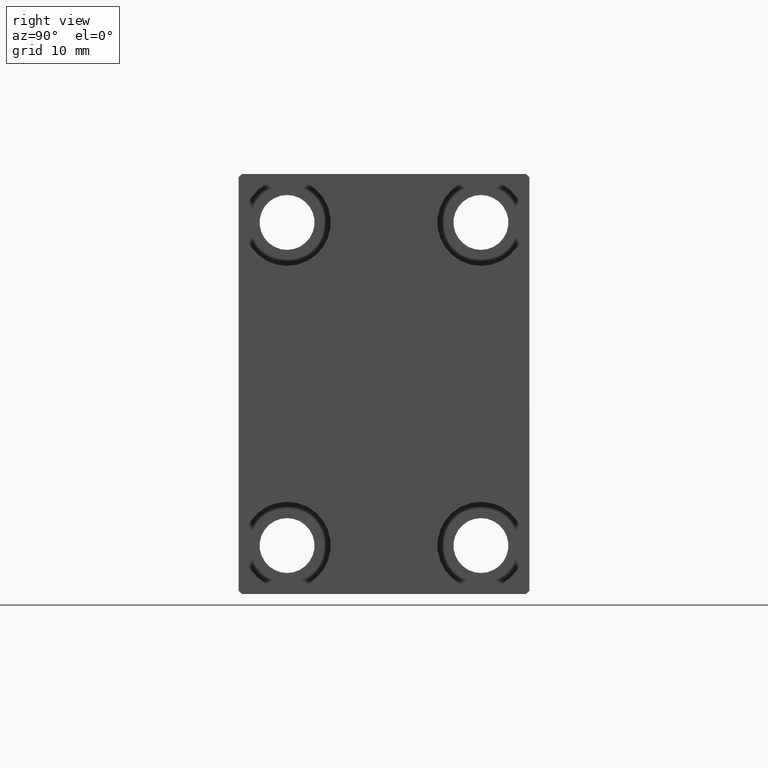
[diagram: clean part render]
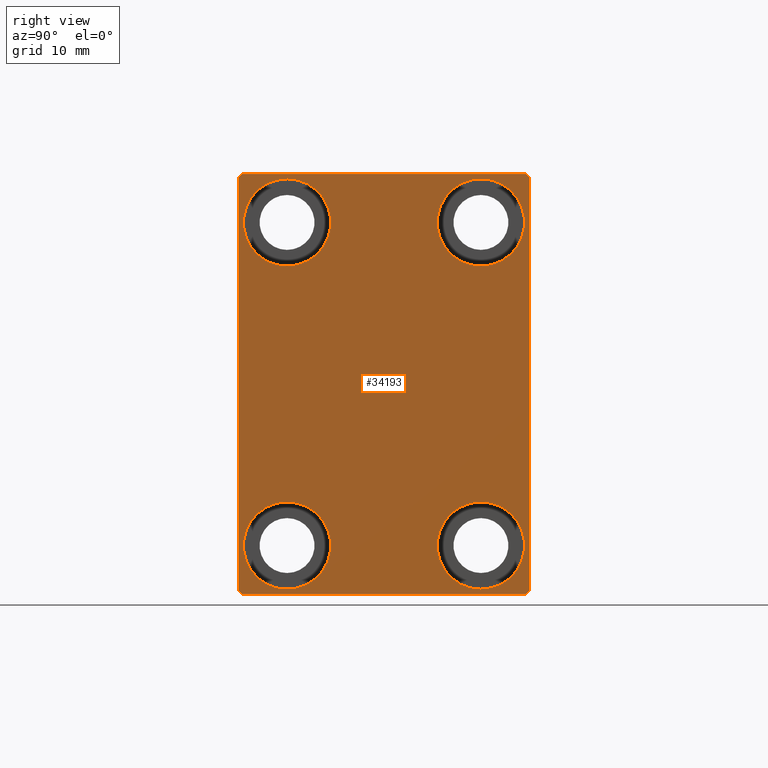
[diagram: same view with one face highlighted and labeled with its STEP entity id]
A machine part, right view. The second image highlights one B-rep face of the part: STEP entity #34193.
In plain terms, the highlighted planar face has unit normal (1, 0, 0).
Its self-contained STEP definition (entity closure, byte-faithful):
#121 = EDGE_CURVE ( 'NONE', #34120, #32743, #16482, .T. ) ;
#127 = DIRECTION ( 'NONE',  ( 0.000000000000000000, 0.000000000000000000, -1.000000000000000000 ) ) ;
#326 = DIRECTION ( 'NONE',  ( 0.000000000000000000, -0.7071067811865474617, -0.7071067811865474617 ) ) ;
#1428 = CARTESIAN_POINT ( 'NONE',  ( 70.00000000000000000, -22.50000000000000711, -32.50000000000000711 ) ) ;
#1613 = ORIENTED_EDGE ( 'NONE', *, *, #6704, .T. ) ;
#1711 = AXIS2_PLACEMENT_3D ( 'NONE', #32537, #2529, #5854 ) ;
#1794 = EDGE_CURVE ( 'NONE', #11616, #19486, #7886, .T. ) ;
#1874 = CARTESIAN_POINT ( 'NONE',  ( 70.00000000000000000, 14.99999999999999645, -31.75000000000000000 ) ) ;
#2529 = DIRECTION ( 'NONE',  ( 1.000000000000000000, 0.000000000000000000, 0.000000000000000000 ) ) ;
#3020 = CARTESIAN_POINT ( 'NONE',  ( 70.00000000000000000, 15.00000000000000355, 31.75000000000000000 ) ) ;
#3245 = CARTESIAN_POINT ( 'NONE',  ( 70.00000000000000000, -27.25000000000000000, 27.25000000000000000 ) ) ;
#3260 = DIRECTION ( 'NONE',  ( -1.000000000000000000, -0.000000000000000000, -0.000000000000000000 ) ) ;
#3351 = CIRCLE ( 'NONE', #21826, 6.749999999999999112 ) ;
#5208 = DIRECTION ( 'NONE',  ( 0.000000000000000000, 0.000000000000000000, 1.000000000000000000 ) ) ;
#5612 = VERTEX_POINT ( 'NONE', #30393 ) ;
#5618 = EDGE_CURVE ( 'NONE', #43796, #32882, #37020, .T. ) ;
#5810 = CARTESIAN_POINT ( 'NONE',  ( 70.00000000000000000, 22.49999999999999289, 32.50000000000000000 ) ) ;
#5816 = VERTEX_POINT ( 'NONE', #32601 ) ;
#5854 = DIRECTION ( 'NONE',  ( 0.000000000000000000, 0.000000000000000000, -1.000000000000000000 ) ) ;
#6088 = VERTEX_POINT ( 'NONE', #16683 ) ;
#6338 = CARTESIAN_POINT ( 'NONE',  ( 70.00000000000000000, 22.00000000000001421, -32.50000000000000711 ) ) ;
#6704 = EDGE_CURVE ( 'NONE', #5816, #34120, #7648, .T. ) ;
#6868 = CARTESIAN_POINT ( 'NONE',  ( 70.00000000000000000, -14.99999999999999645, 25.00000000000000000 ) ) ;
#7013 = CARTESIAN_POINT ( 'NONE',  ( 70.00000000000000000, -22.00000000000002132, -32.50000000000000711 ) ) ;
#7056 = DIRECTION ( 'NONE',  ( -1.000000000000000000, -0.000000000000000000, -0.000000000000000000 ) ) ;
#7648 = LINE ( 'NONE', #14302, #42768 ) ;
#7671 = EDGE_CURVE ( 'NONE', #17474, #37997, #16604, .T. ) ;
#7886 = LINE ( 'NONE', #1428, #42629 ) ;
#8540 = CARTESIAN_POINT ( 'NONE',  ( 70.00000000000000000, -15.00000000000000355, -25.00000000000000000 ) ) ;
#9337 = DIRECTION ( 'NONE',  ( -1.000000000000000000, -0.000000000000000000, -0.000000000000000000 ) ) ;
#9399 = EDGE_LOOP ( 'NONE', ( #27600, #37535 ) ) ;
#9594 = DIRECTION ( 'NONE',  ( 0.000000000000000000, 0.000000000000000000, 1.000000000000000000 ) ) ;
#10036 = CARTESIAN_POINT ( 'NONE',  ( 70.00000000000000000, 27.25000000000014921, 27.24999999999976907 ) ) ;
#10350 = AXIS2_PLACEMENT_3D ( 'NONE', #41255, #3260, #37917 ) ;
#10620 = DIRECTION ( 'NONE',  ( 0.000000000000000000, 0.000000000000000000, 1.000000000000000000 ) ) ;
#11425 = CARTESIAN_POINT ( 'NONE',  ( 70.00000000000000000, -27.25000000000032330, -27.24999999999957012 ) ) ;
#11616 = VERTEX_POINT ( 'NONE', #7013 ) ;
#11680 = EDGE_CURVE ( 'NONE', #20069, #17474, #30790, .T. ) ;
#11935 = EDGE_CURVE ( 'NONE', #16210, #32690, #23669, .T. ) ;
#12699 = ORIENTED_EDGE ( 'NONE', *, *, #43759, .T. ) ;
#13307 = DIRECTION ( 'NONE',  ( -0.000000000000000000, 0.7071067811865376918, 0.7071067811865573427 ) ) ;
#13884 = ORIENTED_EDGE ( 'NONE', *, *, #11680, .T. ) ;
#14302 = CARTESIAN_POINT ( 'NONE',  ( 70.00000000000000000, 22.50000000000000000, -32.50000000000000711 ) ) ;
#14831 = ORIENTED_EDGE ( 'NONE', *, *, #15034, .T. ) ;
#15034 = EDGE_CURVE ( 'NONE', #32690, #16210, #21539, .T. ) ;
#15078 = EDGE_CURVE ( 'NONE', #32743, #20069, #22689, .T. ) ;
#15809 = DIRECTION ( 'NONE',  ( -1.000000000000000000, -0.000000000000000000, -0.000000000000000000 ) ) ;
#16210 = VERTEX_POINT ( 'NONE', #16408 ) ;
#16408 = CARTESIAN_POINT ( 'NONE',  ( 70.00000000000000000, 15.00000000000000355, 18.25000000000000355 ) ) ;
#16482 = LINE ( 'NONE', #10036, #35452 ) ;
#16560 = AXIS2_PLACEMENT_3D ( 'NONE', #19999, #15809, #9594 ) ;
#16604 = LINE ( 'NONE', #23712, #22145 ) ;
#16683 = CARTESIAN_POINT ( 'NONE',  ( 70.00000000000000000, -15.00000000000000355, -31.75000000000000000 ) ) ;
#17474 = VERTEX_POINT ( 'NONE', #28966 ) ;
#17868 = DIRECTION ( 'NONE',  ( 0.000000000000000000, -1.067522139062650425E-16, 1.000000000000000000 ) ) ;
#18119 = DIRECTION ( 'NONE',  ( 0.000000000000000000, 1.000000000000000000, 0.000000000000000000 ) ) ;
#18146 = CARTESIAN_POINT ( 'NONE',  ( 70.00000000000000000, -22.50000000000000711, -32.00000000000000711 ) ) ;
#18205 = ORIENTED_EDGE ( 'NONE', *, *, #121, .T. ) ;
#18697 = VECTOR ( 'NONE', #26032, 1000.000000000000000 ) ;
#19486 = VERTEX_POINT ( 'NONE', #6338 ) ;
#19549 = CIRCLE ( 'NONE', #10350, 6.749999999999999112 ) ;
#19564 = EDGE_CURVE ( 'NONE', #37997, #11616, #31658, .T. ) ;
#19999 = CARTESIAN_POINT ( 'NONE',  ( 70.00000000000000000, 15.00000000000000355, 25.00000000000000000 ) ) ;
#20004 = AXIS2_PLACEMENT_3D ( 'NONE', #20603, #34617, #10620 ) ;
#20069 = VERTEX_POINT ( 'NONE', #36281 ) ;
#20411 = DIRECTION ( 'NONE',  ( 0.000000000000000000, 0.000000000000000000, 1.000000000000000000 ) ) ;
#20603 = CARTESIAN_POINT ( 'NONE',  ( 70.00000000000000000, 15.00000000000000355, 25.00000000000000000 ) ) ;
#20828 = CIRCLE ( 'NONE', #32206, 6.749999999999999112 ) ;
#21416 = CARTESIAN_POINT ( 'NONE',  ( 70.00000000000000000, -15.00000000000000355, -18.25000000000000355 ) ) ;
#21539 = CIRCLE ( 'NONE', #16560, 6.749999999999999112 ) ;
#21729 = ORIENTED_EDGE ( 'NONE', *, *, #7671, .T. ) ;
#21826 = AXIS2_PLACEMENT_3D ( 'NONE', #8540, #35653, #5208 ) ;
#22145 = VECTOR ( 'NONE', #127, 1000.000000000000000 ) ;
#22689 = LINE ( 'NONE', #5810, #18697 ) ;
#22705 = VERTEX_POINT ( 'NONE', #36477 ) ;
#23149 = DIRECTION ( 'NONE',  ( -1.000000000000000000, -0.000000000000000000, -0.000000000000000000 ) ) ;
#23669 = CIRCLE ( 'NONE', #20004, 6.749999999999999112 ) ;
#23712 = CARTESIAN_POINT ( 'NONE',  ( 70.00000000000000000, -22.50000000000000711, 32.49999999999999289 ) ) ;
#24006 = ORIENTED_EDGE ( 'NONE', *, *, #15078, .T. ) ;
#24239 = AXIS2_PLACEMENT_3D ( 'NONE', #40853, #7056, #27056 ) ;
#24307 = EDGE_CURVE ( 'NONE', #34012, #6088, #37077, .T. ) ;
#25641 = EDGE_LOOP ( 'NONE', ( #12699, #38088 ) ) ;
#25855 = FACE_BOUND ( 'NONE', #9399, .T. ) ;
#25998 = CARTESIAN_POINT ( 'NONE',  ( 70.00000000000000000, 27.25000000000032685, -27.24999999999957012 ) ) ;
#26032 = DIRECTION ( 'NONE',  ( 0.000000000000000000, -1.000000000000000000, -1.541976423090495387E-16 ) ) ;
#26289 = EDGE_LOOP ( 'NONE', ( #24006, #13884, #21729, #40359, #40550, #34960, #1613, #18205 ) ) ;
#26435 = LINE ( 'NONE', #25998, #30173 ) ;
#27056 = DIRECTION ( 'NONE',  ( 0.000000000000000000, 0.000000000000000000, 1.000000000000000000 ) ) ;
#27600 = ORIENTED_EDGE ( 'NONE', *, *, #5618, .T. ) ;
#27882 = CARTESIAN_POINT ( 'NONE',  ( 70.00000000000000000, 14.99999999999999645, -25.00000000000000000 ) ) ;
#28764 = PLANE ( 'NONE',  #1711 ) ;
#28966 = CARTESIAN_POINT ( 'NONE',  ( 70.00000000000000000, -22.50000000000000711, 31.99999999999999289 ) ) ;
#28978 = FACE_OUTER_BOUND ( 'NONE', #26289, .T. ) ;
#29943 = CARTESIAN_POINT ( 'NONE',  ( 70.00000000000000000, 14.99999999999999645, -18.25000000000000355 ) ) ;
#30173 = VECTOR ( 'NONE', #13307, 1000.000000000000114 ) ;
#30393 = CARTESIAN_POINT ( 'NONE',  ( 70.00000000000000000, -14.99999999999999645, 31.75000000000000000 ) ) ;
#30691 = EDGE_LOOP ( 'NONE', ( #41050, #14831 ) ) ;
#30790 = LINE ( 'NONE', #3245, #41312 ) ;
#31658 = LINE ( 'NONE', #11425, #41931 ) ;
#32206 = AXIS2_PLACEMENT_3D ( 'NONE', #6868, #9337, #20411 ) ;
#32325 = FACE_BOUND ( 'NONE', #30691, .T. ) ;
#32537 = CARTESIAN_POINT ( 'NONE',  ( 70.00000000000000000, 0.000000000000000000, 0.000000000000000000 ) ) ;
#32561 = EDGE_CURVE ( 'NONE', #5612, #22705, #20828, .T. ) ;
#32601 = CARTESIAN_POINT ( 'NONE',  ( 70.00000000000000000, 22.50000000000000000, -32.00000000000002132 ) ) ;
#32690 = VERTEX_POINT ( 'NONE', #3020 ) ;
#32743 = VERTEX_POINT ( 'NONE', #40568 ) ;
#32882 = VERTEX_POINT ( 'NONE', #29943 ) ;
#33370 = EDGE_LOOP ( 'NONE', ( #33508, #36864 ) ) ;
#33374 = CARTESIAN_POINT ( 'NONE',  ( 70.00000000000000000, -15.00000000000000355, -25.00000000000000000 ) ) ;
#33508 = ORIENTED_EDGE ( 'NONE', *, *, #38372, .T. ) ;
#34012 = VERTEX_POINT ( 'NONE', #21416 ) ;
#34120 = VERTEX_POINT ( 'NONE', #37872 ) ;
#34193 = ADVANCED_FACE ( 'NONE', ( #25855, #39417, #32325, #35642, #28978 ), #28764, .T. ) ;
#34578 = CIRCLE ( 'NONE', #40258, 6.749999999999999112 ) ;
#34617 = DIRECTION ( 'NONE',  ( -1.000000000000000000, -0.000000000000000000, -0.000000000000000000 ) ) ;
#34771 = DIRECTION ( 'NONE',  ( 0.000000000000000000, 0.000000000000000000, 1.000000000000000000 ) ) ;
#34960 = ORIENTED_EDGE ( 'NONE', *, *, #37495, .T. ) ;
#35452 = VECTOR ( 'NONE', #43625, 999.9999999999998863 ) ;
#35642 = FACE_BOUND ( 'NONE', #25641, .T. ) ;
#35653 = DIRECTION ( 'NONE',  ( -1.000000000000000000, -0.000000000000000000, -0.000000000000000000 ) ) ;
#36281 = CARTESIAN_POINT ( 'NONE',  ( 70.00000000000000000, -21.99999999999999289, 32.49999999999999289 ) ) ;
#36477 = CARTESIAN_POINT ( 'NONE',  ( 70.00000000000000000, -14.99999999999999645, 18.25000000000000355 ) ) ;
#36864 = ORIENTED_EDGE ( 'NONE', *, *, #32561, .T. ) ;
#37020 = CIRCLE ( 'NONE', #24239, 6.749999999999999112 ) ;
#37077 = CIRCLE ( 'NONE', #40639, 6.749999999999999112 ) ;
#37495 = EDGE_CURVE ( 'NONE', #19486, #5816, #26435, .T. ) ;
#37535 = ORIENTED_EDGE ( 'NONE', *, *, #43677, .T. ) ;
#37872 = CARTESIAN_POINT ( 'NONE',  ( 70.00000000000000000, 22.49999999999999289, 31.99999999999999289 ) ) ;
#37917 = DIRECTION ( 'NONE',  ( 0.000000000000000000, 0.000000000000000000, 1.000000000000000000 ) ) ;
#37997 = VERTEX_POINT ( 'NONE', #18146 ) ;
#38088 = ORIENTED_EDGE ( 'NONE', *, *, #24307, .T. ) ;
#38107 = DIRECTION ( 'NONE',  ( -1.000000000000000000, -0.000000000000000000, -0.000000000000000000 ) ) ;
#38372 = EDGE_CURVE ( 'NONE', #22705, #5612, #19549, .T. ) ;
#39417 = FACE_BOUND ( 'NONE', #33370, .T. ) ;
#40258 = AXIS2_PLACEMENT_3D ( 'NONE', #27882, #38107, #34771 ) ;
#40359 = ORIENTED_EDGE ( 'NONE', *, *, #19564, .T. ) ;
#40550 = ORIENTED_EDGE ( 'NONE', *, *, #1794, .T. ) ;
#40568 = CARTESIAN_POINT ( 'NONE',  ( 70.00000000000000000, 21.99999999999999289, 32.50000000000000000 ) ) ;
#40639 = AXIS2_PLACEMENT_3D ( 'NONE', #33374, #23149, #43609 ) ;
#40853 = CARTESIAN_POINT ( 'NONE',  ( 70.00000000000000000, 14.99999999999999645, -25.00000000000000000 ) ) ;
#41050 = ORIENTED_EDGE ( 'NONE', *, *, #11935, .T. ) ;
#41255 = CARTESIAN_POINT ( 'NONE',  ( 70.00000000000000000, -14.99999999999999645, 25.00000000000000000 ) ) ;
#41312 = VECTOR ( 'NONE', #326, 1000.000000000000114 ) ;
#41884 = DIRECTION ( 'NONE',  ( -0.000000000000000000, 0.7071067811865378028, -0.7071067811865573427 ) ) ;
#41931 = VECTOR ( 'NONE', #41884, 1000.000000000000000 ) ;
#42629 = VECTOR ( 'NONE', #18119, 1000.000000000000000 ) ;
#42768 = VECTOR ( 'NONE', #17868, 1000.000000000000000 ) ;
#43609 = DIRECTION ( 'NONE',  ( 0.000000000000000000, 0.000000000000000000, 1.000000000000000000 ) ) ;
#43625 = DIRECTION ( 'NONE',  ( -0.000000000000000000, -0.7071067811865425767, 0.7071067811865525687 ) ) ;
#43677 = EDGE_CURVE ( 'NONE', #32882, #43796, #34578, .T. ) ;
#43759 = EDGE_CURVE ( 'NONE', #6088, #34012, #3351, .T. ) ;
#43796 = VERTEX_POINT ( 'NONE', #1874 ) ;